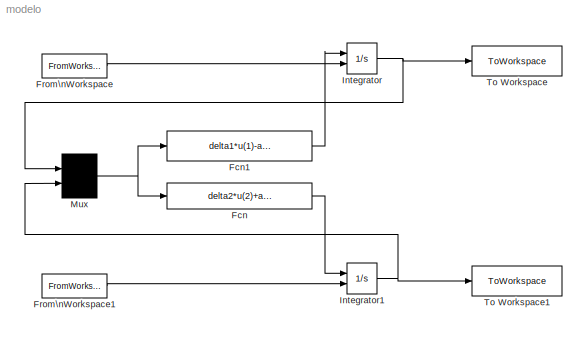
MODEL modelo
KIND model
BLOCK [Fcn] Fcn
  Expr = delta2*u(2)+alfa2*u(1)*u(2)
  SID = 23
BLOCK [Fcn] Fcn1
  Expr = delta1*u(1)-alfa1*u(1)*u(2)
  SID = 24
BLOCK [FromWorkspace] From\nWorkspace
  SID = 4
  SampleTime = 0
  VariableName = N1o
  ZeroCross = on
BLOCK [FromWorkspace] From\nWorkspace1
  SID = 6
  SampleTime = 0
  VariableName = N2o
  ZeroCross = on
BLOCK [Integrator] Integrator
  InitialConditionSource = external
  Ports = [2, 1]
  SID = 1
BLOCK [Integrator] Integrator1
  InitialConditionSource = external
  Ports = [2, 1]
  SID = 7
BLOCK [Mux] Mux
  DisplayOption = signals
  Inputs = 2
  Ports = [2, 1]
  SID = 20
BLOCK [ToWorkspace] To Workspace
  FixptAsFi = on
  MaxDataPoints = inf
  Ports = [1]
  SID = 3
  SampleTime = samp_time
  VariableName = N1
BLOCK [ToWorkspace] To Workspace1
  FixptAsFi = on
  MaxDataPoints = inf
  Ports = [1]
  SID = 8
  SampleTime = samp_time
  VariableName = N2
LINE Fcn1:1 -> Integrator:1
LINE Fcn:1 -> Integrator1:1
LINE From\nWorkspace1:1 -> Integrator1:2
LINE From\nWorkspace:1 -> Integrator:2
NET Integrator1:1 -> Mux:2, To Workspace1:1
NET Integrator:1 -> Mux:1, To Workspace:1
NET Mux:1 -> Fcn1:1, Fcn:1
note: NET lines group one-source signal fan-out (src -> all destinations, sorted); 1:1 wires keep LINE
